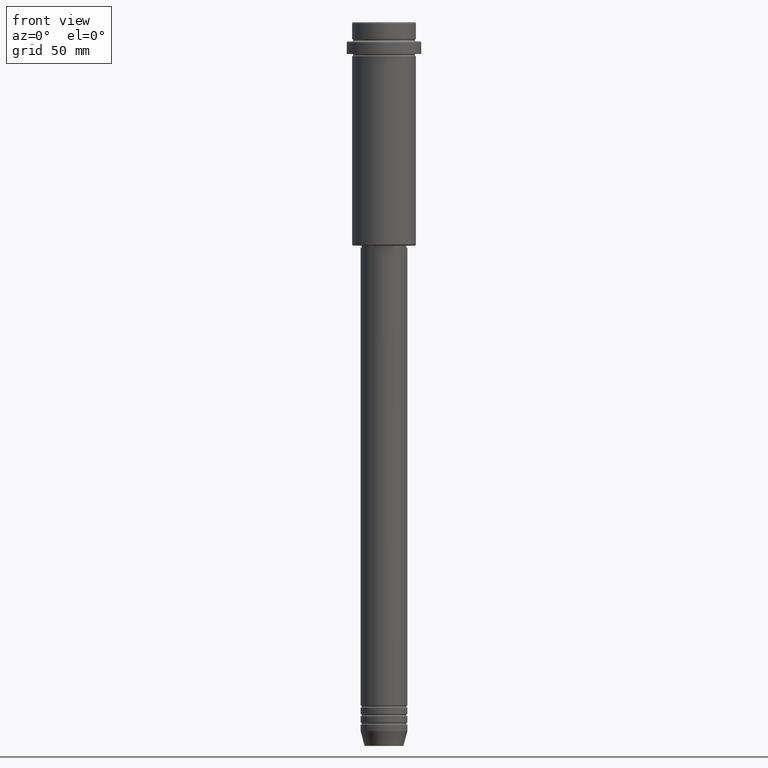
[diagram: clean part render]
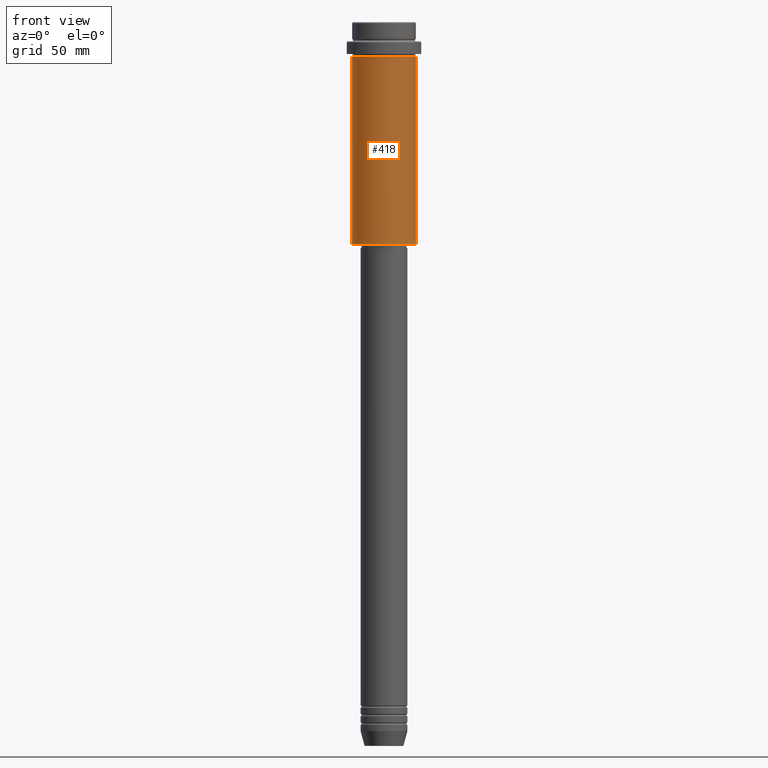
[diagram: same view with one face highlighted and labeled with its STEP entity id]
A machine part, front view. The second image highlights one B-rep face of the part: STEP entity #418.
In plain terms, the highlighted cylindrical surface (edge-blend (fillet) strip) has radius 15 mm, axis along (-0, -0, 1).
Its self-contained STEP definition (entity closure, byte-faithful):
#13 = CARTESIAN_POINT ( 'NONE',  ( 0.000000000000000000, 0.000000000000000000, 0.000000000000000000 ) ) ;
#20 = FACE_OUTER_BOUND ( 'NONE', #1031, .T. ) ;
#95 = CARTESIAN_POINT ( 'NONE',  ( 15.00000000000000000, 0.000000000000000000, 0.000000000000000000 ) ) ;
#211 = CIRCLE ( 'NONE', #651, 15.00000000000000178 ) ;
#257 = VECTOR ( 'NONE', #518, 1000.000000000000000 ) ;
#260 = CARTESIAN_POINT ( 'NONE',  ( -15.00000000000000000, 1.836970198721029589E-15, -104.5000000000000426 ) ) ;
#307 = CARTESIAN_POINT ( 'NONE',  ( -15.00000000000000000, 1.836970198721029589E-15, 0.000000000000000000 ) ) ;
#362 = EDGE_CURVE ( 'NONE', #430, #579, #1168, .T. ) ;
#379 = VERTEX_POINT ( 'NONE', #260 ) ;
#392 = AXIS2_PLACEMENT_3D ( 'NONE', #13, #669, #475 ) ;
#418 = ADVANCED_FACE ( 'NONE', ( #20 ), #563, .T. ) ;
#430 = VERTEX_POINT ( 'NONE', #985 ) ;
#443 = EDGE_CURVE ( 'NONE', #379, #430, #759, .T. ) ;
#475 = DIRECTION ( 'NONE',  ( 1.000000000000000000, 0.000000000000000000, 0.000000000000000000 ) ) ;
#478 = DIRECTION ( 'NONE',  ( -0.000000000000000000, -0.000000000000000000, 1.000000000000000000 ) ) ;
#518 = DIRECTION ( 'NONE',  ( -0.000000000000000000, -0.000000000000000000, 1.000000000000000000 ) ) ;
#563 = CYLINDRICAL_SURFACE ( 'NONE', #392, 15.00000000000000000 ) ;
#568 = DIRECTION ( 'NONE',  ( -1.000000000000000000, 0.000000000000000000, 0.000000000000000000 ) ) ;
#579 = VERTEX_POINT ( 'NONE', #854 ) ;
#651 = AXIS2_PLACEMENT_3D ( 'NONE', #926, #478, #918 ) ;
#669 = DIRECTION ( 'NONE',  ( -0.000000000000000000, -0.000000000000000000, 1.000000000000000000 ) ) ;
#676 = DIRECTION ( 'NONE',  ( -0.000000000000000000, -0.000000000000000000, 1.000000000000000000 ) ) ;
#706 = VERTEX_POINT ( 'NONE', #1193 ) ;
#754 = ORIENTED_EDGE ( 'NONE', *, *, #941, .F. ) ;
#759 = CIRCLE ( 'NONE', #801, 15.00000000000000000 ) ;
#770 = CARTESIAN_POINT ( 'NONE',  ( 0.000000000000000000, 0.000000000000000000, -104.5000000000000426 ) ) ;
#801 = AXIS2_PLACEMENT_3D ( 'NONE', #770, #676, #568 ) ;
#854 = CARTESIAN_POINT ( 'NONE',  ( 15.00000000000000178, 0.000000000000000000, -16.00000000000000000 ) ) ;
#918 = DIRECTION ( 'NONE',  ( 1.000000000000000000, 0.000000000000000000, 0.000000000000000000 ) ) ;
#926 = CARTESIAN_POINT ( 'NONE',  ( 0.000000000000000000, 0.000000000000000000, -16.00000000000000000 ) ) ;
#941 = EDGE_CURVE ( 'NONE', #706, #579, #211, .T. ) ;
#979 = EDGE_CURVE ( 'NONE', #379, #706, #1162, .T. ) ;
#985 = CARTESIAN_POINT ( 'NONE',  ( 15.00000000000000000, 0.000000000000000000, -104.5000000000000426 ) ) ;
#1031 = EDGE_LOOP ( 'NONE', ( #1275, #1352, #1137, #754 ) ) ;
#1084 = VECTOR ( 'NONE', #1297, 1000.000000000000000 ) ;
#1137 = ORIENTED_EDGE ( 'NONE', *, *, #362, .T. ) ;
#1162 = LINE ( 'NONE', #307, #257 ) ;
#1168 = LINE ( 'NONE', #95, #1084 ) ;
#1193 = CARTESIAN_POINT ( 'NONE',  ( -15.00000000000000355, 1.836970198721029983E-15, -16.00000000000000000 ) ) ;
#1275 = ORIENTED_EDGE ( 'NONE', *, *, #979, .F. ) ;
#1297 = DIRECTION ( 'NONE',  ( -0.000000000000000000, -0.000000000000000000, 1.000000000000000000 ) ) ;
#1352 = ORIENTED_EDGE ( 'NONE', *, *, #443, .T. ) ;